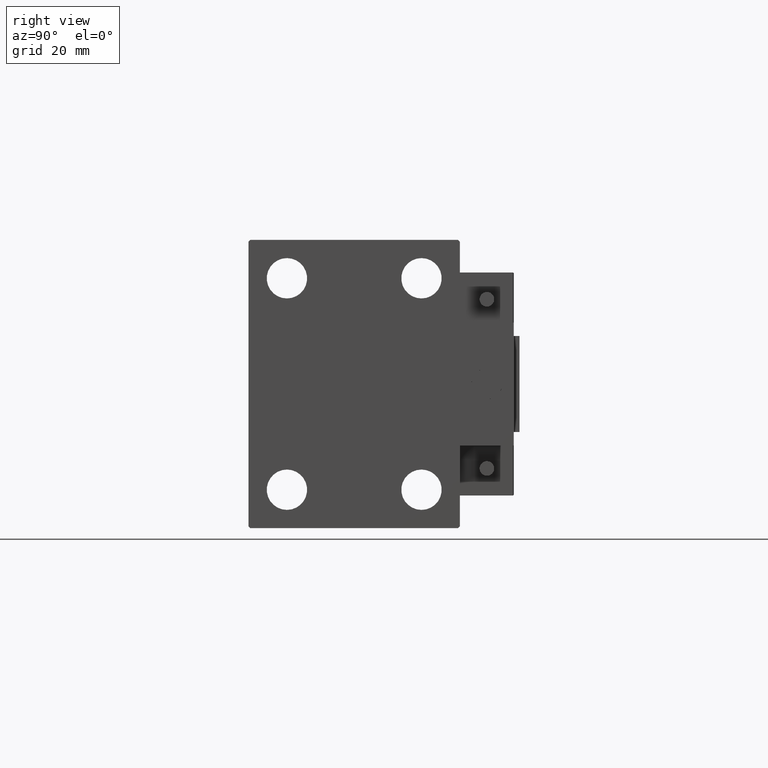
[diagram: clean part render]
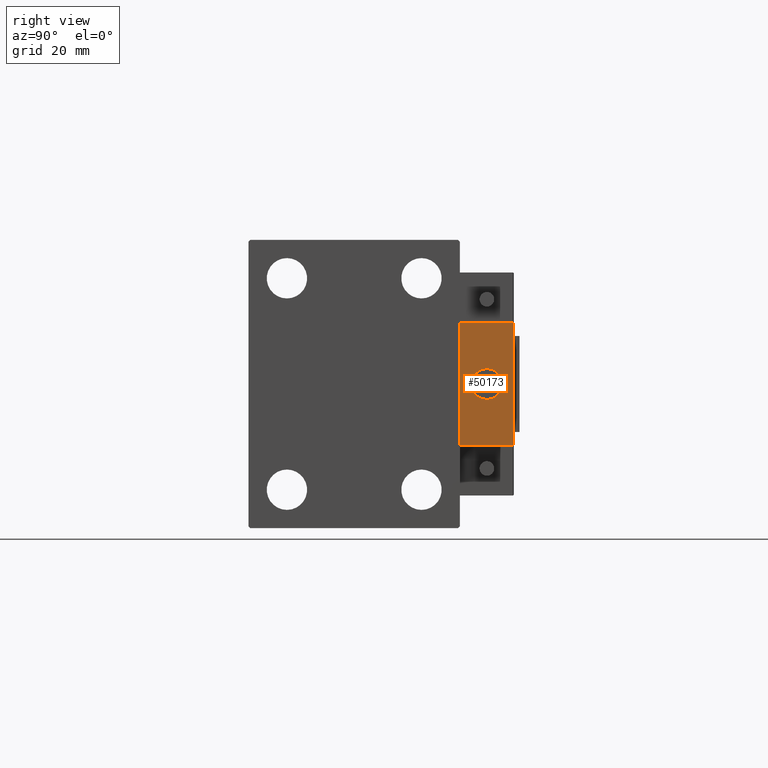
[diagram: same view with one face highlighted and labeled with its STEP entity id]
A machine part, right view. The second image highlights one B-rep face of the part: STEP entity #50173.
In plain terms, the highlighted planar face has unit normal (-1, 0, 0).
Its self-contained STEP definition (entity closure, byte-faithful):
#11 = CARTESIAN_POINT ( 'NONE',  ( 10.00000000000000000, 7.000000000000000000, 15.99999999999999289 ) ) ;
#1583 = EDGE_CURVE ( 'NONE', #26124, #28087, #20521, .T. ) ;
#2274 = CARTESIAN_POINT ( 'NONE',  ( 10.00000000000000000, 7.000000000000000000, -16.00000000000000711 ) ) ;
#3857 = EDGE_LOOP ( 'NONE', ( #41126, #37778 ) ) ;
#4613 = AXIS2_PLACEMENT_3D ( 'NONE', #40276, #39265, #40033 ) ;
#5903 = ORIENTED_EDGE ( 'NONE', *, *, #6101, .F. ) ;
#6101 = EDGE_CURVE ( 'NONE', #23667, #24247, #15932, .T. ) ;
#6740 = EDGE_CURVE ( 'NONE', #26123, #34130, #42976, .T. ) ;
#6741 = ORIENTED_EDGE ( 'NONE', *, *, #1583, .T. ) ;
#7964 = AXIS2_PLACEMENT_3D ( 'NONE', #24801, #47914, #36621 ) ;
#9213 = VECTOR ( 'NONE', #36192, 1000.000000000000000 ) ;
#9552 = DIRECTION ( 'NONE',  ( 0.000000000000000000, 0.000000000000000000, 1.000000000000000000 ) ) ;
#15668 = EDGE_CURVE ( 'NONE', #24247, #28087, #29998, .T. ) ;
#15932 = LINE ( 'NONE', #11, #19217 ) ;
#17086 = PLANE ( 'NONE',  #7964 ) ;
#19217 = VECTOR ( 'NONE', #46994, 1000.000000000000000 ) ;
#20521 = LINE ( 'NONE', #44388, #9213 ) ;
#21014 = CIRCLE ( 'NONE', #4613, 4.000000000000000000 ) ;
#21914 = CARTESIAN_POINT ( 'NONE',  ( 10.00000000000000000, -7.000000000000000000, 15.99999999999999289 ) ) ;
#23667 = VERTEX_POINT ( 'NONE', #25829 ) ;
#23966 = DIRECTION ( 'NONE',  ( 0.000000000000000000, -1.000000000000000000, 0.000000000000000000 ) ) ;
#24247 = VERTEX_POINT ( 'NONE', #29807 ) ;
#24264 = EDGE_LOOP ( 'NONE', ( #6741, #46792, #5903, #39183 ) ) ;
#24801 = CARTESIAN_POINT ( 'NONE',  ( 10.00000000000000000, 0.000000000000000000, 0.000000000000000000 ) ) ;
#24931 = AXIS2_PLACEMENT_3D ( 'NONE', #40631, #28816, #9552 ) ;
#25673 = EDGE_CURVE ( 'NONE', #34130, #26123, #21014, .T. ) ;
#25829 = CARTESIAN_POINT ( 'NONE',  ( 10.00000000000000000, 7.000000000000000000, 15.99999999999999289 ) ) ;
#26123 = VERTEX_POINT ( 'NONE', #33474 ) ;
#26124 = VERTEX_POINT ( 'NONE', #21914 ) ;
#27368 = VECTOR ( 'NONE', #49508, 1000.000000000000000 ) ;
#28087 = VERTEX_POINT ( 'NONE', #43498 ) ;
#28816 = DIRECTION ( 'NONE',  ( -1.000000000000000000, 0.000000000000000000, 0.000000000000000000 ) ) ;
#29807 = CARTESIAN_POINT ( 'NONE',  ( 10.00000000000000000, 7.000000000000000000, -16.00000000000000711 ) ) ;
#29998 = LINE ( 'NONE', #2274, #27368 ) ;
#30900 = LINE ( 'NONE', #39634, #45007 ) ;
#32480 = EDGE_CURVE ( 'NONE', #23667, #26124, #30900, .T. ) ;
#32519 = FACE_OUTER_BOUND ( 'NONE', #24264, .T. ) ;
#33474 = CARTESIAN_POINT ( 'NONE',  ( 10.00000000000000000, 4.898587196589412829E-16, -4.000000000000000000 ) ) ;
#34130 = VERTEX_POINT ( 'NONE', #49071 ) ;
#36192 = DIRECTION ( 'NONE',  ( 0.000000000000000000, 0.000000000000000000, -1.000000000000000000 ) ) ;
#36621 = DIRECTION ( 'NONE',  ( -0.000000000000000000, 0.000000000000000000, 1.000000000000000000 ) ) ;
#37778 = ORIENTED_EDGE ( 'NONE', *, *, #6740, .T. ) ;
#39183 = ORIENTED_EDGE ( 'NONE', *, *, #32480, .T. ) ;
#39265 = DIRECTION ( 'NONE',  ( -1.000000000000000000, 0.000000000000000000, 0.000000000000000000 ) ) ;
#39634 = CARTESIAN_POINT ( 'NONE',  ( 10.00000000000000000, 7.000000000000000000, 15.99999999999999289 ) ) ;
#39987 = FACE_BOUND ( 'NONE', #3857, .T. ) ;
#40033 = DIRECTION ( 'NONE',  ( 0.000000000000000000, 0.000000000000000000, 1.000000000000000000 ) ) ;
#40276 = CARTESIAN_POINT ( 'NONE',  ( 10.00000000000000000, 0.000000000000000000, 0.000000000000000000 ) ) ;
#40631 = CARTESIAN_POINT ( 'NONE',  ( 10.00000000000000000, 0.000000000000000000, 0.000000000000000000 ) ) ;
#41126 = ORIENTED_EDGE ( 'NONE', *, *, #25673, .T. ) ;
#42976 = CIRCLE ( 'NONE', #24931, 4.000000000000000000 ) ;
#43498 = CARTESIAN_POINT ( 'NONE',  ( 10.00000000000000000, -7.000000000000000000, -16.00000000000000711 ) ) ;
#44388 = CARTESIAN_POINT ( 'NONE',  ( 10.00000000000000000, -7.000000000000000000, 15.99999999999999289 ) ) ;
#45007 = VECTOR ( 'NONE', #23966, 1000.000000000000000 ) ;
#46792 = ORIENTED_EDGE ( 'NONE', *, *, #15668, .F. ) ;
#46994 = DIRECTION ( 'NONE',  ( 0.000000000000000000, 0.000000000000000000, -1.000000000000000000 ) ) ;
#47914 = DIRECTION ( 'NONE',  ( -1.000000000000000000, 0.000000000000000000, -0.000000000000000000 ) ) ;
#49071 = CARTESIAN_POINT ( 'NONE',  ( 10.00000000000000000, 0.000000000000000000, 4.000000000000000000 ) ) ;
#49508 = DIRECTION ( 'NONE',  ( 0.000000000000000000, -1.000000000000000000, 0.000000000000000000 ) ) ;
#50173 = ADVANCED_FACE ( 'NONE', ( #39987, #32519 ), #17086, .F. ) ;